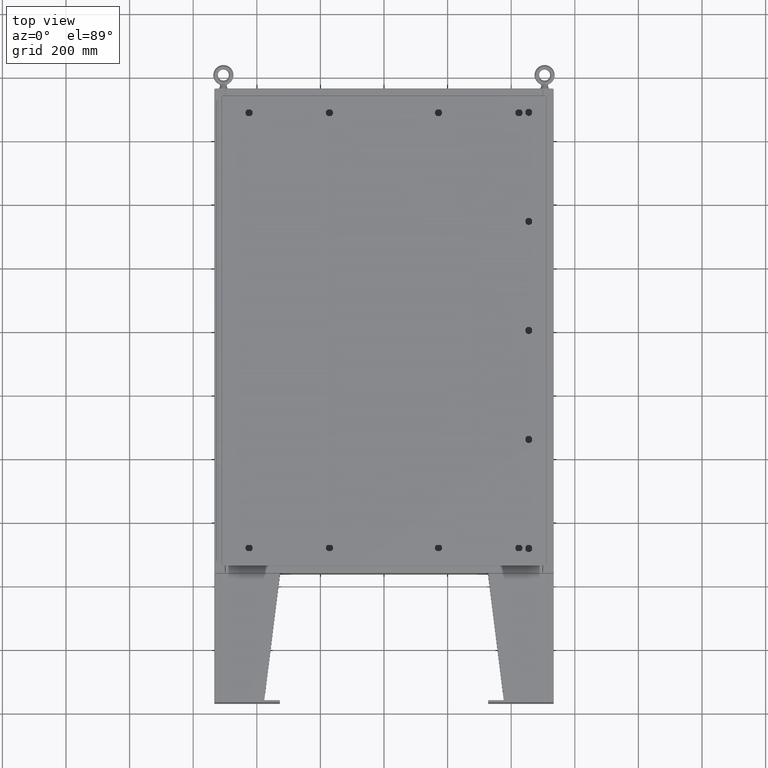
[diagram: clean part render]
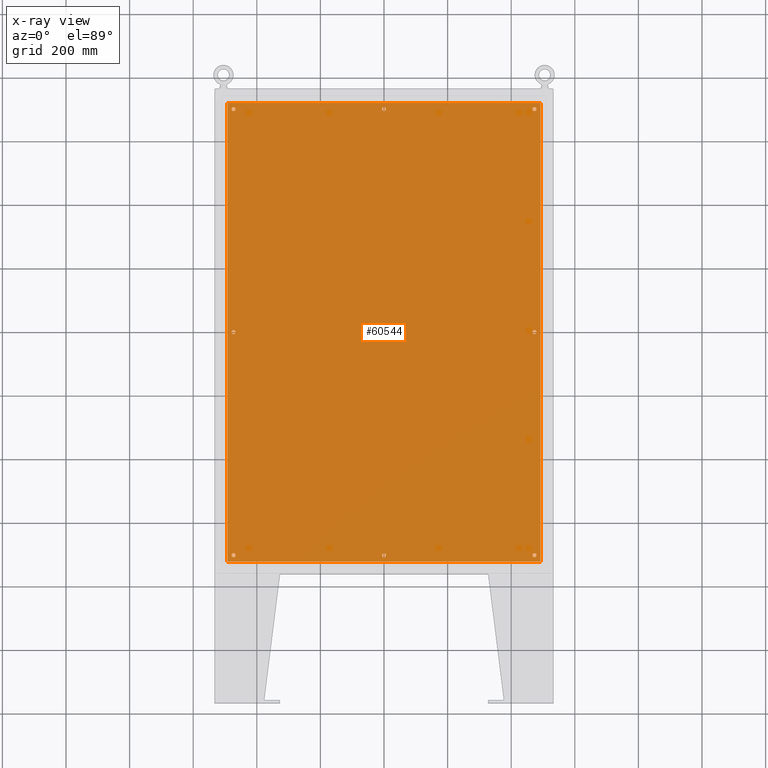
[diagram: x-ray — body ghosted, one internal face saturated and labeled with its STEP entity id]
A machine part, top view, then the same camera in x-ray: the body is ghosted and one INTERNAL B-rep face — a face not visible from any outside direction — is saturated and labeled: STEP entity #60544.
In plain terms, the highlighted planar face has unit normal (0, 0, -1).
Its self-contained STEP definition (entity closure, byte-faithful):
#7 = DIRECTION ( 'NONE',  ( -0.0000000000000000000, -0.0000000000000000000, 1.000000000000000000 ) ) ;
#135 = CARTESIAN_POINT ( 'NONE',  ( -19.38299999999999900, 28.38299999999999600, -0.1040000000000052800 ) ) ;
#458 = CIRCLE ( 'NONE', #58694, 0.2500000000000008900 ) ;
#1191 = DIRECTION ( 'NONE',  ( -1.000000000000000000, 0.0000000000000000000, 0.0000000000000000000 ) ) ;
#1205 = VERTEX_POINT ( 'NONE', #27539 ) ;
#1818 = ORIENTED_EDGE ( 'NONE', *, *, #27952, .T. ) ;
#1877 = AXIS2_PLACEMENT_3D ( 'NONE', #31153, #21546, #55642 ) ;
#2705 = FACE_BOUND ( 'NONE', #52646, .T. ) ;
#2795 = CARTESIAN_POINT ( 'NONE',  ( -18.62500000000000000, -27.62500000000000400, -0.1039999999999999800 ) ) ;
#3022 = CARTESIAN_POINT ( 'NONE',  ( 0.0000000000000000000, -27.62500000000000400, -0.1039999999999999800 ) ) ;
#3071 = EDGE_CURVE ( 'NONE', #41310, #1205, #51495, .T. ) ;
#3264 = VECTOR ( 'NONE', #4150, 39.37007874015748100 ) ;
#3480 = EDGE_CURVE ( 'NONE', #7739, #4401, #28596, .T. ) ;
#4150 = DIRECTION ( 'NONE',  ( -1.000000000000000000, -0.0000000000000000000, -0.0000000000000000000 ) ) ;
#4192 = FACE_BOUND ( 'NONE', #10769, .T. ) ;
#4401 = VERTEX_POINT ( 'NONE', #55047 ) ;
#4756 = LINE ( 'NONE', #33266, #3264 ) ;
#5502 = ORIENTED_EDGE ( 'NONE', *, *, #59689, .T. ) ;
#7225 = FACE_BOUND ( 'NONE', #56006, .T. ) ;
#7550 = CARTESIAN_POINT ( 'NONE',  ( 18.62500000000000000, -27.62500000000000400, -0.1039999999999999800 ) ) ;
#7707 = AXIS2_PLACEMENT_3D ( 'NONE', #29039, #7, #33928 ) ;
#7739 = VERTEX_POINT ( 'NONE', #36852 ) ;
#8452 = VECTOR ( 'NONE', #62762, 39.37007874015748100 ) ;
#8796 = EDGE_CURVE ( 'NONE', #62613, #25030, #61160, .T. ) ;
#8807 = CARTESIAN_POINT ( 'NONE',  ( -18.62500000000000400, 27.62500000000000400, -0.1039999999999999800 ) ) ;
#8984 = DIRECTION ( 'NONE',  ( -0.0000000000000000000, -0.0000000000000000000, 1.000000000000000000 ) ) ;
#9261 = EDGE_LOOP ( 'NONE', ( #41529, #34584 ) ) ;
#10104 = VERTEX_POINT ( 'NONE', #16371 ) ;
#10118 = EDGE_CURVE ( 'NONE', #60231, #29341, #28237, .T. ) ;
#10367 = AXIS2_PLACEMENT_3D ( 'NONE', #11785, #45897, #16680 ) ;
#10437 = EDGE_LOOP ( 'NONE', ( #23208, #17210 ) ) ;
#10567 = CIRCLE ( 'NONE', #29840, 0.2499999999999987000 ) ;
#10742 = CARTESIAN_POINT ( 'NONE',  ( 0.2500000000000011700, -27.62500000000000400, -0.1039999999999999800 ) ) ;
#10769 = EDGE_LOOP ( 'NONE', ( #37557, #30654 ) ) ;
#11073 = CARTESIAN_POINT ( 'NONE',  ( -18.37500000000000400, -27.62500000000000400, -0.1039999999999999800 ) ) ;
#11785 = CARTESIAN_POINT ( 'NONE',  ( 0.0000000000000000000, 27.62500000000000400, -0.1039999999999999800 ) ) ;
#12427 = DIRECTION ( 'NONE',  ( -1.000000000000000000, 0.0000000000000000000, 0.0000000000000000000 ) ) ;
#12439 = VECTOR ( 'NONE', #56100, 39.37007874015748100 ) ;
#12572 = DIRECTION ( 'NONE',  ( -1.000000000000000000, 0.0000000000000000000, 0.0000000000000000000 ) ) ;
#13441 = EDGE_CURVE ( 'NONE', #25030, #62613, #15989, .T. ) ;
#13743 = ORIENTED_EDGE ( 'NONE', *, *, #20111, .F. ) ;
#13765 = VECTOR ( 'NONE', #60654, 39.37007874015748100 ) ;
#13792 = EDGE_CURVE ( 'NONE', #60807, #55888, #47961, .T. ) ;
#14232 = CARTESIAN_POINT ( 'NONE',  ( 19.38299999999999900, -28.38299999999999600, -0.1040000000000009100 ) ) ;
#15467 = CARTESIAN_POINT ( 'NONE',  ( -18.87500000000000000, -27.62500000000000400, -0.1039999999999999800 ) ) ;
#15567 = CARTESIAN_POINT ( 'NONE',  ( 18.37500000000000400, 27.62500000000000400, -0.1039999999999999800 ) ) ;
#15568 = FACE_BOUND ( 'NONE', #10437, .T. ) ;
#15604 = CARTESIAN_POINT ( 'NONE',  ( -18.37500000000000400, 27.62500000000000400, -0.1039999999999999800 ) ) ;
#15989 = CIRCLE ( 'NONE', #34729, 0.2499999999999987000 ) ;
#15994 = AXIS2_PLACEMENT_3D ( 'NONE', #3022, #62220, #33350 ) ;
#16346 = VERTEX_POINT ( 'NONE', #29627 ) ;
#16371 = CARTESIAN_POINT ( 'NONE',  ( -18.37500000000000000, -8.298848852119578500E-016, -0.1039999999999999800 ) ) ;
#16578 = CARTESIAN_POINT ( 'NONE',  ( -19.49999999999999600, -28.38300000000000300, -0.1040000000000009400 ) ) ;
#16680 = DIRECTION ( 'NONE',  ( -1.000000000000000000, 0.0000000000000000000, 0.0000000000000000000 ) ) ;
#17092 = FACE_BOUND ( 'NONE', #30801, .T. ) ;
#17189 = DIRECTION ( 'NONE',  ( -1.000000000000000000, 0.0000000000000000000, 0.0000000000000000000 ) ) ;
#17194 = CARTESIAN_POINT ( 'NONE',  ( 18.87500000000000000, 27.62500000000000400, -0.1039999999999999800 ) ) ;
#17210 = ORIENTED_EDGE ( 'NONE', *, *, #44572, .T. ) ;
#17577 = CARTESIAN_POINT ( 'NONE',  ( 19.38299999999999900, -28.38299999999999600, -0.1040000000000009100 ) ) ;
#17883 = AXIS2_PLACEMENT_3D ( 'NONE', #55544, #32428, #24330 ) ;
#18643 = CARTESIAN_POINT ( 'NONE',  ( 0.0000000000000000000, -27.62500000000000400, -0.1039999999999999800 ) ) ;
#18754 = VERTEX_POINT ( 'NONE', #15567 ) ;
#19420 = EDGE_CURVE ( 'NONE', #49961, #46207, #458, .T. ) ;
#19472 = CIRCLE ( 'NONE', #42368, 0.2499999999999987000 ) ;
#19522 = EDGE_CURVE ( 'NONE', #16346, #58949, #46070, .T. ) ;
#20111 = EDGE_CURVE ( 'NONE', #62389, #60231, #49788, .T. ) ;
#20700 = AXIS2_PLACEMENT_3D ( 'NONE', #25229, #59279, #30102 ) ;
#20767 = ORIENTED_EDGE ( 'NONE', *, *, #43501, .T. ) ;
#20957 = DIRECTION ( 'NONE',  ( -1.000000000000000000, 0.0000000000000000000, 0.0000000000000000000 ) ) ;
#21546 = DIRECTION ( 'NONE',  ( 0.0000000000000000000, 0.0000000000000000000, -1.000000000000000000 ) ) ;
#21608 = ORIENTED_EDGE ( 'NONE', *, *, #19420, .T. ) ;
#22594 = CARTESIAN_POINT ( 'NONE',  ( -18.87500000000000400, 27.62500000000000400, -0.1039999999999999800 ) ) ;
#22696 = EDGE_CURVE ( 'NONE', #46207, #49961, #41119, .T. ) ;
#23208 = ORIENTED_EDGE ( 'NONE', *, *, #35883, .T. ) ;
#23553 = DIRECTION ( 'NONE',  ( -1.000000000000000000, 0.0000000000000000000, 0.0000000000000000000 ) ) ;
#23614 = DIRECTION ( 'NONE',  ( -0.0000000000000000000, -0.0000000000000000000, 1.000000000000000000 ) ) ;
#23716 = CARTESIAN_POINT ( 'NONE',  ( -19.38299999999999900, -28.38300000000000300, -0.1040000000000009400 ) ) ;
#24330 = DIRECTION ( 'NONE',  ( -1.000000000000000000, 0.0000000000000000000, 0.0000000000000000000 ) ) ;
#24456 = DIRECTION ( 'NONE',  ( -0.0000000000000000000, -0.0000000000000000000, 1.000000000000000000 ) ) ;
#25030 = VERTEX_POINT ( 'NONE', #11073 ) ;
#25090 = CIRCLE ( 'NONE', #17883, 0.2500000000000008900 ) ;
#25229 = CARTESIAN_POINT ( 'NONE',  ( 18.62500000000000000, 27.62500000000000400, -0.1039999999999999800 ) ) ;
#25401 = CIRCLE ( 'NONE', #10367, 0.2499999999999998600 ) ;
#27539 = CARTESIAN_POINT ( 'NONE',  ( 18.37500000000000000, 3.762540611590616200E-015, -0.1039999999999999800 ) ) ;
#27576 = DIRECTION ( 'NONE',  ( -0.0000000000000000000, -0.0000000000000000000, 1.000000000000000000 ) ) ;
#27829 = DIRECTION ( 'NONE',  ( -0.0000000000000000000, -0.0000000000000000000, 1.000000000000000000 ) ) ;
#27952 = EDGE_CURVE ( 'NONE', #10104, #53614, #25090, .T. ) ;
#28237 = LINE ( 'NONE', #16578, #13765 ) ;
#28531 = FACE_BOUND ( 'NONE', #9261, .T. ) ;
#28596 = CIRCLE ( 'NONE', #61945, 0.2499999999999987000 ) ;
#28727 = EDGE_LOOP ( 'NONE', ( #40488, #13743, #54680, #43527 ) ) ;
#28886 = DIRECTION ( 'NONE',  ( -0.0000000000000000000, -0.0000000000000000000, 1.000000000000000000 ) ) ;
#29039 = CARTESIAN_POINT ( 'NONE',  ( 18.62500000000000000, 3.731924441611932400E-015, -0.1039999999999999800 ) ) ;
#29341 = VERTEX_POINT ( 'NONE', #17577 ) ;
#29627 = CARTESIAN_POINT ( 'NONE',  ( 0.2499999999999998600, 27.62500000000000400, -0.1039999999999999800 ) ) ;
#29840 = AXIS2_PLACEMENT_3D ( 'NONE', #7550, #41593, #12427 ) ;
#30102 = DIRECTION ( 'NONE',  ( -1.000000000000000000, 0.0000000000000000000, 0.0000000000000000000 ) ) ;
#30239 = DIRECTION ( 'NONE',  ( -0.0000000000000000000, -0.0000000000000000000, 1.000000000000000000 ) ) ;
#30513 = VERTEX_POINT ( 'NONE', #37019 ) ;
#30654 = ORIENTED_EDGE ( 'NONE', *, *, #8796, .T. ) ;
#30801 = EDGE_LOOP ( 'NONE', ( #1818, #20767 ) ) ;
#30827 = AXIS2_PLACEMENT_3D ( 'NONE', #2795, #24456, #12572 ) ;
#30981 = CIRCLE ( 'NONE', #7707, 0.2500000000000008900 ) ;
#31029 = CARTESIAN_POINT ( 'NONE',  ( 18.62500000000000000, -27.62500000000000400, -0.1039999999999999800 ) ) ;
#31153 = CARTESIAN_POINT ( 'NONE',  ( 0.0000000000000000000, 0.0000000000000000000, -0.1039999999999999800 ) ) ;
#31692 = CARTESIAN_POINT ( 'NONE',  ( -18.87500000000000000, -7.992687152332741600E-016, -0.1039999999999999800 ) ) ;
#32067 = CARTESIAN_POINT ( 'NONE',  ( -0.2500000000000011700, -27.62500000000000400, -0.1039999999999999800 ) ) ;
#32255 = ORIENTED_EDGE ( 'NONE', *, *, #22696, .T. ) ;
#32428 = DIRECTION ( 'NONE',  ( -0.0000000000000000000, -0.0000000000000000000, 1.000000000000000000 ) ) ;
#32519 = EDGE_CURVE ( 'NONE', #58949, #16346, #25401, .T. ) ;
#33266 = CARTESIAN_POINT ( 'NONE',  ( 19.50000000000000000, 28.38300000000000300, -0.1040000000000009400 ) ) ;
#33350 = DIRECTION ( 'NONE',  ( -1.000000000000000000, 0.0000000000000000000, 0.0000000000000000000 ) ) ;
#33928 = DIRECTION ( 'NONE',  ( -1.000000000000000000, 0.0000000000000000000, 0.0000000000000000000 ) ) ;
#34194 = CIRCLE ( 'NONE', #36597, 0.2500000000000008900 ) ;
#34584 = ORIENTED_EDGE ( 'NONE', *, *, #3480, .T. ) ;
#34685 = CARTESIAN_POINT ( 'NONE',  ( -18.62500000000000400, 27.62500000000000400, -0.1039999999999999800 ) ) ;
#34729 = AXIS2_PLACEMENT_3D ( 'NONE', #40777, #27576, #20957 ) ;
#35391 = EDGE_CURVE ( 'NONE', #1205, #41310, #30981, .T. ) ;
#35883 = EDGE_CURVE ( 'NONE', #42332, #18754, #19472, .T. ) ;
#36579 = EDGE_CURVE ( 'NONE', #29341, #30513, #60246, .T. ) ;
#36585 = DIRECTION ( 'NONE',  ( -1.000000000000000000, 0.0000000000000000000, 0.0000000000000000000 ) ) ;
#36597 = AXIS2_PLACEMENT_3D ( 'NONE', #59406, #30239, #1191 ) ;
#36852 = CARTESIAN_POINT ( 'NONE',  ( 18.37500000000000400, -27.62500000000000400, -0.1039999999999999800 ) ) ;
#37019 = CARTESIAN_POINT ( 'NONE',  ( 19.38299999999999900, 28.38299999999999600, -0.1040000000000009100 ) ) ;
#37557 = ORIENTED_EDGE ( 'NONE', *, *, #13441, .T. ) ;
#38160 = CARTESIAN_POINT ( 'NONE',  ( 18.62500000000000000, 27.62500000000000400, -0.1039999999999999800 ) ) ;
#38367 = CARTESIAN_POINT ( 'NONE',  ( -0.2499999999999998600, 27.62500000000000400, -0.1039999999999999800 ) ) ;
#39291 = AXIS2_PLACEMENT_3D ( 'NONE', #18643, #52712, #23553 ) ;
#39709 = DIRECTION ( 'NONE',  ( -0.0000000000000000000, -0.0000000000000000000, 1.000000000000000000 ) ) ;
#40082 = CIRCLE ( 'NONE', #39291, 0.2500000000000011700 ) ;
#40338 = AXIS2_PLACEMENT_3D ( 'NONE', #61807, #39709, #36585 ) ;
#40488 = ORIENTED_EDGE ( 'NONE', *, *, #10118, .F. ) ;
#40777 = CARTESIAN_POINT ( 'NONE',  ( -18.62500000000000000, -27.62500000000000400, -0.1039999999999999800 ) ) ;
#41086 = ORIENTED_EDGE ( 'NONE', *, *, #19522, .T. ) ;
#41119 = CIRCLE ( 'NONE', #42558, 0.2500000000000008900 ) ;
#41217 = CARTESIAN_POINT ( 'NONE',  ( 18.87500000000000000, 3.731924441611932400E-015, -0.1039999999999999800 ) ) ;
#41305 = ORIENTED_EDGE ( 'NONE', *, *, #32519, .T. ) ;
#41310 = VERTEX_POINT ( 'NONE', #41217 ) ;
#41496 = FACE_BOUND ( 'NONE', #46374, .T. ) ;
#41528 = EDGE_CURVE ( 'NONE', #30513, #62389, #4756, .T. ) ;
#41529 = ORIENTED_EDGE ( 'NONE', *, *, #50620, .T. ) ;
#41593 = DIRECTION ( 'NONE',  ( -0.0000000000000000000, -0.0000000000000000000, 1.000000000000000000 ) ) ;
#41605 = DIRECTION ( 'NONE',  ( -1.000000000000000000, 0.0000000000000000000, 0.0000000000000000000 ) ) ;
#42332 = VERTEX_POINT ( 'NONE', #17194 ) ;
#42368 = AXIS2_PLACEMENT_3D ( 'NONE', #38160, #8984, #43052 ) ;
#42558 = AXIS2_PLACEMENT_3D ( 'NONE', #34685, #23614, #55706 ) ;
#42757 = CARTESIAN_POINT ( 'NONE',  ( -19.38299999999999900, 28.38299999999999600, -0.1040000000000052800 ) ) ;
#43052 = DIRECTION ( 'NONE',  ( -1.000000000000000000, 0.0000000000000000000, 0.0000000000000000000 ) ) ;
#43501 = EDGE_CURVE ( 'NONE', #53614, #10104, #34194, .T. ) ;
#43527 = ORIENTED_EDGE ( 'NONE', *, *, #36579, .F. ) ;
#44489 = EDGE_LOOP ( 'NONE', ( #41086, #41305 ) ) ;
#44572 = EDGE_CURVE ( 'NONE', #18754, #42332, #45500, .T. ) ;
#45500 = CIRCLE ( 'NONE', #20700, 0.2499999999999987000 ) ;
#45897 = DIRECTION ( 'NONE',  ( -0.0000000000000000000, -0.0000000000000000000, 1.000000000000000000 ) ) ;
#46070 = CIRCLE ( 'NONE', #61972, 0.2499999999999998600 ) ;
#46207 = VERTEX_POINT ( 'NONE', #15604 ) ;
#46374 = EDGE_LOOP ( 'NONE', ( #54223, #48700 ) ) ;
#47961 = CIRCLE ( 'NONE', #15994, 0.2500000000000011700 ) ;
#48700 = ORIENTED_EDGE ( 'NONE', *, *, #35391, .T. ) ;
#49036 = ORIENTED_EDGE ( 'NONE', *, *, #13792, .T. ) ;
#49788 = LINE ( 'NONE', #135, #12439 ) ;
#49961 = VERTEX_POINT ( 'NONE', #22594 ) ;
#50620 = EDGE_CURVE ( 'NONE', #4401, #7739, #10567, .T. ) ;
#50716 = PLANE ( 'NONE',  #1877 ) ;
#51495 = CIRCLE ( 'NONE', #40338, 0.2500000000000008900 ) ;
#52646 = EDGE_LOOP ( 'NONE', ( #32255, #21608 ) ) ;
#52712 = DIRECTION ( 'NONE',  ( -0.0000000000000000000, -0.0000000000000000000, 1.000000000000000000 ) ) ;
#52894 = FACE_OUTER_BOUND ( 'NONE', #28727, .T. ) ;
#53511 = DIRECTION ( 'NONE',  ( -1.000000000000000000, 0.0000000000000000000, 0.0000000000000000000 ) ) ;
#53614 = VERTEX_POINT ( 'NONE', #31692 ) ;
#54223 = ORIENTED_EDGE ( 'NONE', *, *, #3071, .T. ) ;
#54447 = FACE_BOUND ( 'NONE', #44489, .T. ) ;
#54680 = ORIENTED_EDGE ( 'NONE', *, *, #41528, .F. ) ;
#55047 = CARTESIAN_POINT ( 'NONE',  ( 18.87500000000000000, -27.62500000000000400, -0.1039999999999999800 ) ) ;
#55544 = CARTESIAN_POINT ( 'NONE',  ( -18.62500000000000000, -8.298848852119578500E-016, -0.1039999999999999800 ) ) ;
#55642 = DIRECTION ( 'NONE',  ( -1.000000000000000000, 0.0000000000000000000, -0.0000000000000000000 ) ) ;
#55706 = DIRECTION ( 'NONE',  ( -1.000000000000000000, 0.0000000000000000000, 0.0000000000000000000 ) ) ;
#55888 = VERTEX_POINT ( 'NONE', #10742 ) ;
#56006 = EDGE_LOOP ( 'NONE', ( #5502, #49036 ) ) ;
#56100 = DIRECTION ( 'NONE',  ( 0.0000000000000000000, -1.000000000000000000, 0.0000000000000000000 ) ) ;
#57190 = DIRECTION ( 'NONE',  ( -0.0000000000000000000, -0.0000000000000000000, 1.000000000000000000 ) ) ;
#58694 = AXIS2_PLACEMENT_3D ( 'NONE', #8807, #27829, #17189 ) ;
#58949 = VERTEX_POINT ( 'NONE', #38367 ) ;
#59279 = DIRECTION ( 'NONE',  ( -0.0000000000000000000, -0.0000000000000000000, 1.000000000000000000 ) ) ;
#59406 = CARTESIAN_POINT ( 'NONE',  ( -18.62500000000000000, -8.298848852119578500E-016, -0.1039999999999999800 ) ) ;
#59689 = EDGE_CURVE ( 'NONE', #55888, #60807, #40082, .T. ) ;
#60231 = VERTEX_POINT ( 'NONE', #23716 ) ;
#60246 = LINE ( 'NONE', #14232, #8452 ) ;
#60360 = CARTESIAN_POINT ( 'NONE',  ( 0.0000000000000000000, 27.62500000000000400, -0.1039999999999999800 ) ) ;
#60544 = ADVANCED_FACE ( 'NONE', ( #7225, #54447, #41496, #17092, #4192, #28531, #15568, #2705, #52894 ), #50716, .T. ) ;
#60654 = DIRECTION ( 'NONE',  ( 1.000000000000000000, -0.0000000000000000000, -0.0000000000000000000 ) ) ;
#60807 = VERTEX_POINT ( 'NONE', #32067 ) ;
#61160 = CIRCLE ( 'NONE', #30827, 0.2499999999999987000 ) ;
#61807 = CARTESIAN_POINT ( 'NONE',  ( 18.62500000000000000, 3.731924441611932400E-015, -0.1039999999999999800 ) ) ;
#61945 = AXIS2_PLACEMENT_3D ( 'NONE', #31029, #57190, #53511 ) ;
#61972 = AXIS2_PLACEMENT_3D ( 'NONE', #60360, #28886, #41605 ) ;
#62220 = DIRECTION ( 'NONE',  ( -0.0000000000000000000, -0.0000000000000000000, 1.000000000000000000 ) ) ;
#62389 = VERTEX_POINT ( 'NONE', #42757 ) ;
#62613 = VERTEX_POINT ( 'NONE', #15467 ) ;
#62762 = DIRECTION ( 'NONE',  ( 0.0000000000000000000, 1.000000000000000000, 0.0000000000000000000 ) ) ;